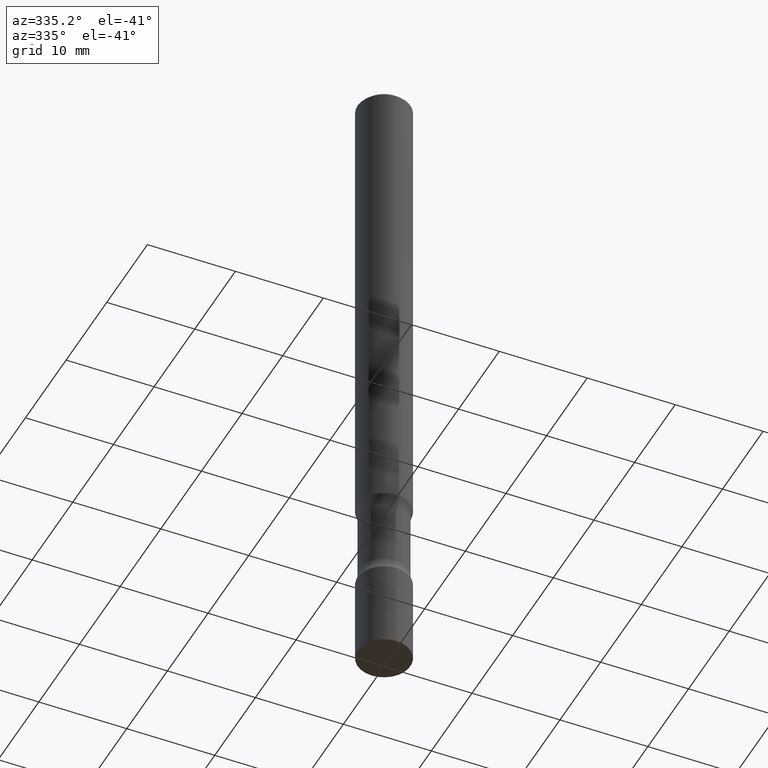
[diagram: clean part render]
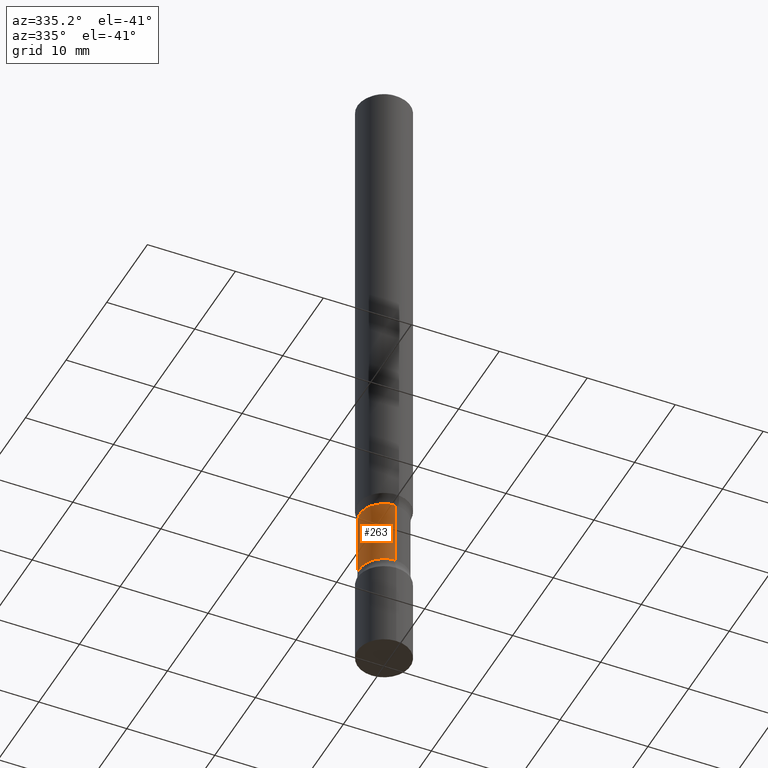
[diagram: same view with one face highlighted and labeled with its STEP entity id]
A machine part, auxiliary view. The second image highlights one B-rep face of the part: STEP entity #263.
In plain terms, the highlighted cylindrical surface (edge-blend (fillet) strip) has radius 2.7445 mm, axis along (0, -0, -1).
Its self-contained STEP definition (entity closure, byte-faithful):
#23 = CARTESIAN_POINT ( 'NONE',  ( 6.196172983594957992E-29, -8.680443625292024117E-15, -2.509992999480725295 ) ) ;
#32 = VERTEX_POINT ( 'NONE', #385 ) ;
#33 = ORIENTED_EDGE ( 'NONE', *, *, #289, .F. ) ;
#47 = DIRECTION ( 'NONE',  ( 6.982962677686265922E-15, 1.000000000000000000, -5.056636730521555250E-15 ) ) ;
#48 = CIRCLE ( 'NONE', #95, 0.1080499999999995075 ) ;
#54 = ORIENTED_EDGE ( 'NONE', *, *, #313, .T. ) ;
#64 = DIRECTION ( 'NONE',  ( 1.613693020239834494E-29, -4.682631606054515961E-15, -1.000000000000000000 ) ) ;
#83 = CYLINDRICAL_SURFACE ( 'NONE', #228, 0.1080499999999997296 ) ;
#88 = CARTESIAN_POINT ( 'NONE',  ( 7.545091173240547993E-16, 0.1080499999999922217, -2.214507000519275071 ) ) ;
#95 = AXIS2_PLACEMENT_3D ( 'NONE', #378, #285, #246 ) ;
#105 = LINE ( 'NONE', #254, #192 ) ;
#106 = EDGE_CURVE ( 'NONE', #32, #450, #105, .T. ) ;
#138 = DIRECTION ( 'NONE',  ( 1.613693020239834494E-29, -4.682631606054515961E-15, -1.000000000000000000 ) ) ;
#151 = VERTEX_POINT ( 'NONE', #88 ) ;
#167 = DIRECTION ( 'NONE',  ( 1.613693020239834494E-29, -4.682631606054515961E-15, -1.000000000000000000 ) ) ;
#192 = VECTOR ( 'NONE', #223, 39.37007874015748143 ) ;
#219 = EDGE_LOOP ( 'NONE', ( #251, #54, #375, #33 ) ) ;
#220 = CARTESIAN_POINT ( 'NONE',  ( 7.545091173240683085E-16, 0.1080499999999889743, -2.952800000000000313 ) ) ;
#223 = DIRECTION ( 'NONE',  ( 1.613693020239834494E-29, -4.682631606054515961E-15, -1.000000000000000000 ) ) ;
#228 = AXIS2_PLACEMENT_3D ( 'NONE', #230, #167, #47 ) ;
#230 = CARTESIAN_POINT ( 'NONE',  ( 6.910727549646248509E-29, -1.075394568130577733E-14, -2.952799999999999869 ) ) ;
#246 = DIRECTION ( 'NONE',  ( 6.982962677686266711E-15, 1.000000000000000000, -5.056636730521565505E-15 ) ) ;
#251 = ORIENTED_EDGE ( 'NONE', *, *, #106, .F. ) ;
#254 = CARTESIAN_POINT ( 'NONE',  ( -7.412768086591430143E-16, -0.1080500000000104988, -2.952799999999998981 ) ) ;
#263 = ADVANCED_FACE ( 'NONE', ( #271 ), #83, .T. ) ;
#271 = FACE_OUTER_BOUND ( 'NONE', #219, .T. ) ;
#285 = DIRECTION ( 'NONE',  ( 1.613693020239834494E-29, -4.682631606054515961E-15, -1.000000000000000000 ) ) ;
#286 = AXIS2_PLACEMENT_3D ( 'NONE', #23, #64, #376 ) ;
#289 = EDGE_CURVE ( 'NONE', #450, #416, #506, .T. ) ;
#295 = EDGE_CURVE ( 'NONE', #151, #416, #327, .T. ) ;
#313 = EDGE_CURVE ( 'NONE', #32, #151, #48, .T. ) ;
#327 = LINE ( 'NONE', #220, #338 ) ;
#338 = VECTOR ( 'NONE', #138, 39.37007874015748143 ) ;
#375 = ORIENTED_EDGE ( 'NONE', *, *, #295, .T. ) ;
#376 = DIRECTION ( 'NONE',  ( 6.982962677686265922E-15, 1.000000000000000000, -5.056636730521544995E-15 ) ) ;
#378 = CARTESIAN_POINT ( 'NONE',  ( 5.719349289492271294E-29, -7.296791547408544304E-15, -2.214507000519274627 ) ) ;
#385 = CARTESIAN_POINT ( 'NONE',  ( -7.757508110979558221E-16, -0.1080500000000068073, -2.214507000519274182 ) ) ;
#408 = CARTESIAN_POINT ( 'NONE',  ( 7.545091173240625893E-16, 0.1080499999999912641, -2.509992999480725739 ) ) ;
#416 = VERTEX_POINT ( 'NONE', #408 ) ;
#430 = CARTESIAN_POINT ( 'NONE',  ( -7.757508110979535541E-16, -0.1080500000000086114, -2.509992999480724407 ) ) ;
#450 = VERTEX_POINT ( 'NONE', #430 ) ;
#506 = CIRCLE ( 'NONE', #286, 0.1080499999999999378 ) ;